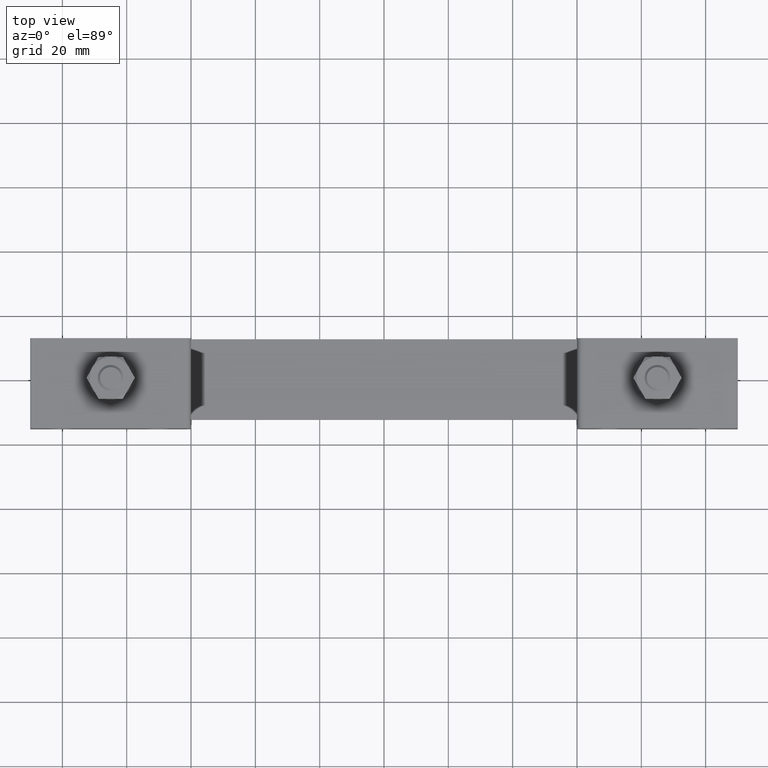
[diagram: clean part render]
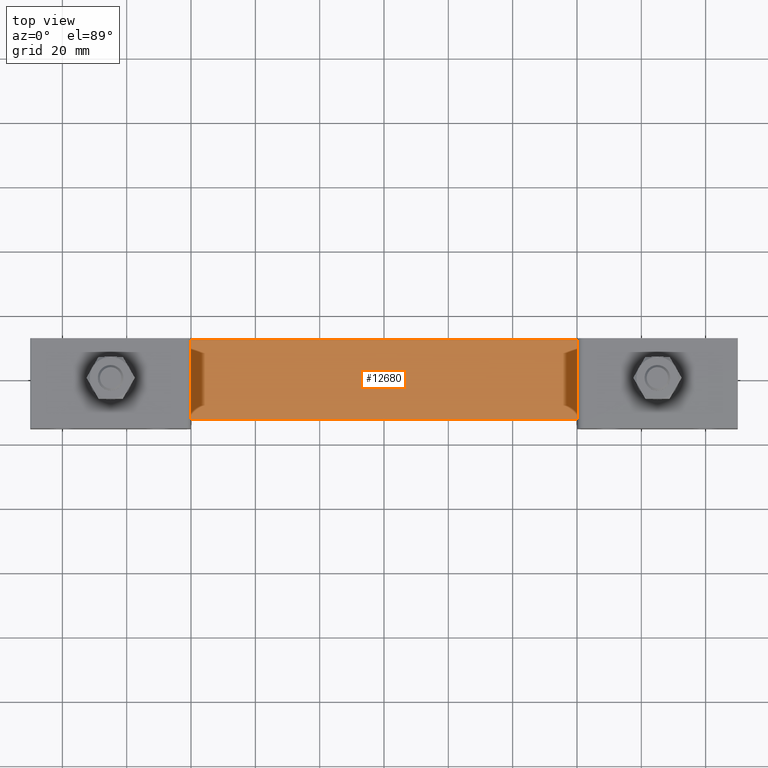
[diagram: same view with one face highlighted and labeled with its STEP entity id]
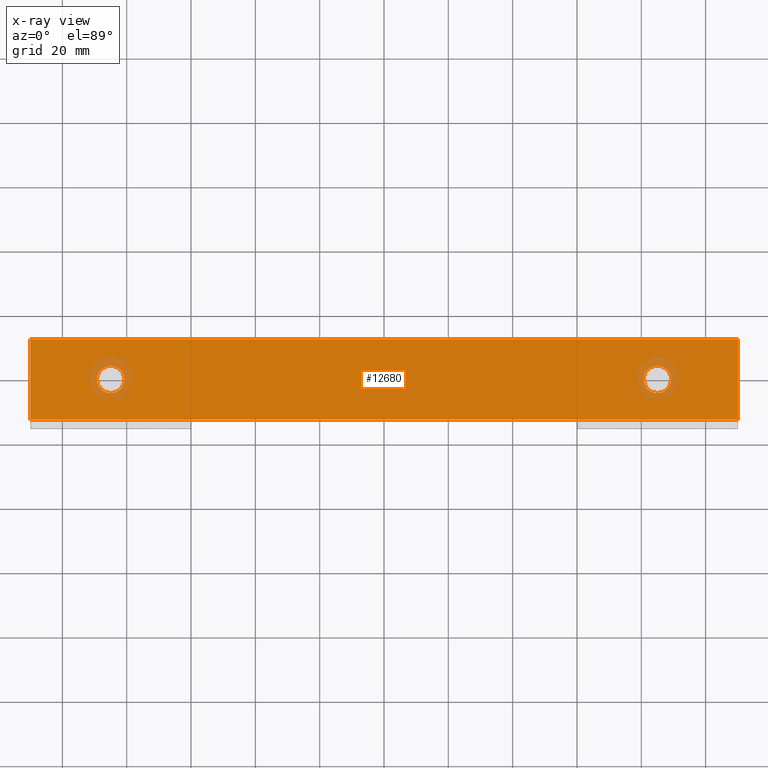
[diagram: x-ray of the same camera — body ghosted, the highlighted face saturated]
A machine part, top view. The second image highlights one B-rep face of the part: STEP entity #12680.
The next image is the same camera in x-ray: the body ghosted, the highlighted face saturated — about 3% of this face is hidden behind the body in this view.
In plain terms, the highlighted planar face has unit normal (0, 0, 1).
Its self-contained STEP definition (entity closure, byte-faithful):
#94 = EDGE_CURVE ( 'NONE', #20152, #12060, #1636, .T. ) ;
#860 = CARTESIAN_POINT ( 'NONE',  ( -85.00000000000000000, 0.0000000000000000000, 3.000000000000000000 ) ) ;
#882 = ORIENTED_EDGE ( 'NONE', *, *, #7747, .T. ) ;
#916 = VECTOR ( 'NONE', #4300, 1000.000000000000000 ) ;
#947 = EDGE_CURVE ( 'NONE', #12060, #20152, #12977, .T. ) ;
#1165 = CARTESIAN_POINT ( 'NONE',  ( -110.0000000000000000, -12.50000000000000000, 3.000000000000000000 ) ) ;
#1534 = CARTESIAN_POINT ( 'NONE',  ( 85.00000000000000000, 2.081830801498040100E-014, 3.000000000000000000 ) ) ;
#1549 = DIRECTION ( 'NONE',  ( -1.000000000000000000, 5.519574696289839900E-017, 0.0000000000000000000 ) ) ;
#1636 = CIRCLE ( 'NONE', #4820, 4.250000000000003600 ) ;
#1857 = FACE_BOUND ( 'NONE', #19243, .T. ) ;
#2132 = ORIENTED_EDGE ( 'NONE', *, *, #947, .T. ) ;
#2315 = DIRECTION ( 'NONE',  ( 0.0000000000000000000, 0.0000000000000000000, -1.000000000000000000 ) ) ;
#2409 = VERTEX_POINT ( 'NONE', #8238 ) ;
#2512 = DIRECTION ( 'NONE',  ( 0.0000000000000000000, 0.0000000000000000000, -1.000000000000000000 ) ) ;
#2671 = AXIS2_PLACEMENT_3D ( 'NONE', #14893, #7175, #8737 ) ;
#3030 = DIRECTION ( 'NONE',  ( 0.0000000000000000000, 0.0000000000000000000, -1.000000000000000000 ) ) ;
#3090 = CARTESIAN_POINT ( 'NONE',  ( 80.75000000000000000, 2.081830801498040100E-014, 3.000000000000000000 ) ) ;
#3107 = LINE ( 'NONE', #17229, #4313 ) ;
#3196 = EDGE_CURVE ( 'NONE', #2409, #3416, #3107, .T. ) ;
#3337 = DIRECTION ( 'NONE',  ( 0.0000000000000000000, 0.0000000000000000000, -1.000000000000000000 ) ) ;
#3381 = LINE ( 'NONE', #12558, #10461 ) ;
#3416 = VERTEX_POINT ( 'NONE', #19474 ) ;
#3878 = DIRECTION ( 'NONE',  ( -1.000000000000000000, 0.0000000000000000000, 0.0000000000000000000 ) ) ;
#3950 = VERTEX_POINT ( 'NONE', #5638 ) ;
#4300 = DIRECTION ( 'NONE',  ( 1.000000000000000000, 0.0000000000000000000, 0.0000000000000000000 ) ) ;
#4313 = VECTOR ( 'NONE', #1549, 1000.000000000000000 ) ;
#4334 = CARTESIAN_POINT ( 'NONE',  ( -110.0000000000000000, -12.50000000000000000, 3.000000000000000000 ) ) ;
#4386 = ORIENTED_EDGE ( 'NONE', *, *, #8295, .T. ) ;
#4820 = AXIS2_PLACEMENT_3D ( 'NONE', #1534, #3030, #15468 ) ;
#4966 = DIRECTION ( 'NONE',  ( -1.000000000000000000, 0.0000000000000000000, 0.0000000000000000000 ) ) ;
#5574 = EDGE_CURVE ( 'NONE', #7992, #7552, #13970, .T. ) ;
#5638 = CARTESIAN_POINT ( 'NONE',  ( 110.0000000000000000, -12.50000000000000000, 3.000000000000000000 ) ) ;
#5995 = DIRECTION ( 'NONE',  ( 0.0000000000000000000, 1.000000000000000000, 0.0000000000000000000 ) ) ;
#6520 = CARTESIAN_POINT ( 'NONE',  ( -110.0000000000000000, 12.50000000000000000, 3.000000000000000000 ) ) ;
#7175 = DIRECTION ( 'NONE',  ( 0.0000000000000000000, 0.0000000000000000000, 1.000000000000000000 ) ) ;
#7291 = EDGE_CURVE ( 'NONE', #7552, #7992, #18280, .T. ) ;
#7552 = VERTEX_POINT ( 'NONE', #9392 ) ;
#7747 = EDGE_CURVE ( 'NONE', #3950, #2409, #3381, .T. ) ;
#7947 = EDGE_LOOP ( 'NONE', ( #4386, #12267, #882, #16376 ) ) ;
#7992 = VERTEX_POINT ( 'NONE', #16425 ) ;
#8176 = CARTESIAN_POINT ( 'NONE',  ( -85.00000000000000000, 0.0000000000000000000, 3.000000000000000000 ) ) ;
#8238 = CARTESIAN_POINT ( 'NONE',  ( 110.0000000000000000, 12.50000000000000000, 3.000000000000000000 ) ) ;
#8295 = EDGE_CURVE ( 'NONE', #3416, #9276, #13586, .T. ) ;
#8644 = DIRECTION ( 'NONE',  ( -1.000000000000000000, 0.0000000000000000000, 0.0000000000000000000 ) ) ;
#8737 = DIRECTION ( 'NONE',  ( 1.000000000000000000, 0.0000000000000000000, 0.0000000000000000000 ) ) ;
#9276 = VERTEX_POINT ( 'NONE', #4334 ) ;
#9392 = CARTESIAN_POINT ( 'NONE',  ( -80.75000000000000000, 5.204748896376247700E-016, 3.000000000000000000 ) ) ;
#9459 = VECTOR ( 'NONE', #18965, 1000.000000000000000 ) ;
#10276 = AXIS2_PLACEMENT_3D ( 'NONE', #860, #2512, #8644 ) ;
#10461 = VECTOR ( 'NONE', #5995, 1000.000000000000000 ) ;
#10644 = FACE_BOUND ( 'NONE', #12830, .T. ) ;
#11009 = CARTESIAN_POINT ( 'NONE',  ( 89.25000000000001400, 2.133878290461802200E-014, 3.000000000000000000 ) ) ;
#11913 = LINE ( 'NONE', #1165, #916 ) ;
#12060 = VERTEX_POINT ( 'NONE', #3090 ) ;
#12267 = ORIENTED_EDGE ( 'NONE', *, *, #15226, .T. ) ;
#12558 = CARTESIAN_POINT ( 'NONE',  ( 110.0000000000000000, 12.50000000000000000, 3.000000000000000000 ) ) ;
#12680 = ADVANCED_FACE ( 'NONE', ( #1857, #10644, #17897 ), #19535, .T. ) ;
#12830 = EDGE_LOOP ( 'NONE', ( #2132, #20118 ) ) ;
#12977 = CIRCLE ( 'NONE', #17562, 4.250000000000003600 ) ;
#13586 = LINE ( 'NONE', #6520, #9459 ) ;
#13970 = CIRCLE ( 'NONE', #17903, 4.250000000000003600 ) ;
#14784 = ORIENTED_EDGE ( 'NONE', *, *, #7291, .T. ) ;
#14893 = CARTESIAN_POINT ( 'NONE',  ( -110.0000000000000000, -12.50000000000000000, 3.000000000000000000 ) ) ;
#15226 = EDGE_CURVE ( 'NONE', #9276, #3950, #11913, .T. ) ;
#15468 = DIRECTION ( 'NONE',  ( -1.000000000000000000, 0.0000000000000000000, 0.0000000000000000000 ) ) ;
#16376 = ORIENTED_EDGE ( 'NONE', *, *, #3196, .T. ) ;
#16425 = CARTESIAN_POINT ( 'NONE',  ( -89.25000000000001400, 0.0000000000000000000, 3.000000000000000000 ) ) ;
#17229 = CARTESIAN_POINT ( 'NONE',  ( -110.0000000000000000, 12.50000000000000000, 3.000000000000000000 ) ) ;
#17562 = AXIS2_PLACEMENT_3D ( 'NONE', #19175, #2315, #3878 ) ;
#17897 = FACE_OUTER_BOUND ( 'NONE', #7947, .T. ) ;
#17903 = AXIS2_PLACEMENT_3D ( 'NONE', #8176, #3337, #4966 ) ;
#18280 = CIRCLE ( 'NONE', #10276, 4.250000000000003600 ) ;
#18965 = DIRECTION ( 'NONE',  ( 0.0000000000000000000, -1.000000000000000000, 0.0000000000000000000 ) ) ;
#19175 = CARTESIAN_POINT ( 'NONE',  ( 85.00000000000000000, 2.081830801498040100E-014, 3.000000000000000000 ) ) ;
#19243 = EDGE_LOOP ( 'NONE', ( #19874, #14784 ) ) ;
#19474 = CARTESIAN_POINT ( 'NONE',  ( -110.0000000000000000, 12.50000000000000000, 3.000000000000000000 ) ) ;
#19535 = PLANE ( 'NONE',  #2671 ) ;
#19874 = ORIENTED_EDGE ( 'NONE', *, *, #5574, .T. ) ;
#20118 = ORIENTED_EDGE ( 'NONE', *, *, #94, .T. ) ;
#20152 = VERTEX_POINT ( 'NONE', #11009 ) ;